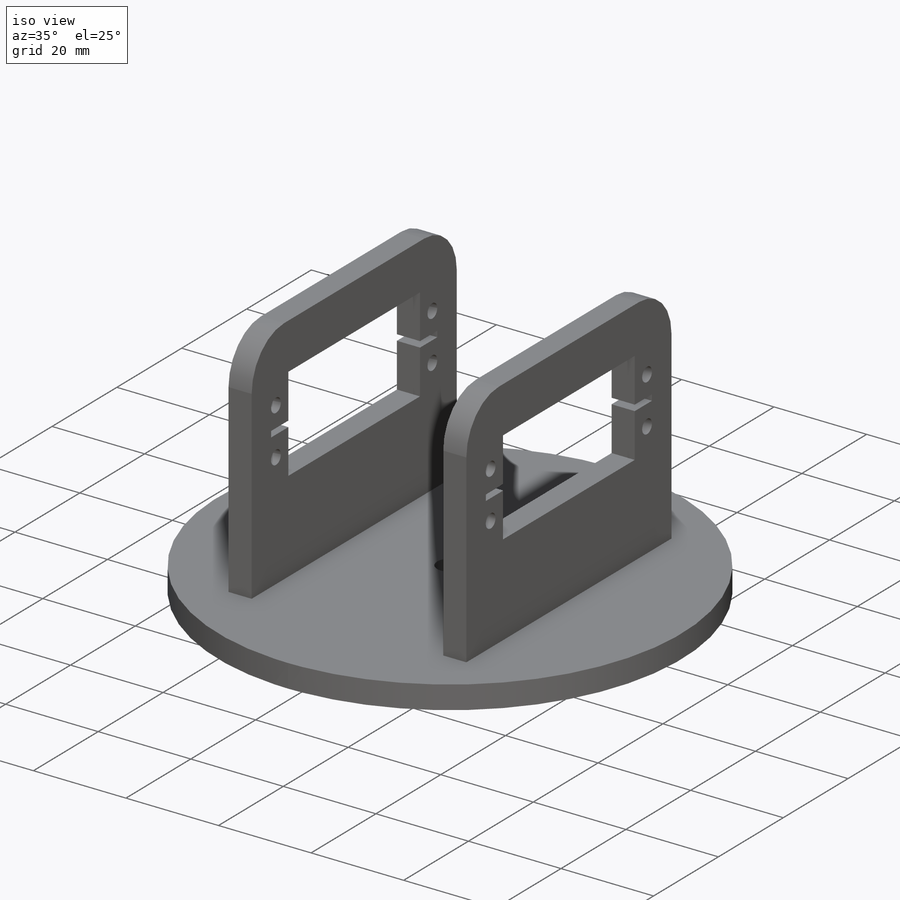
[diagram: iso view]
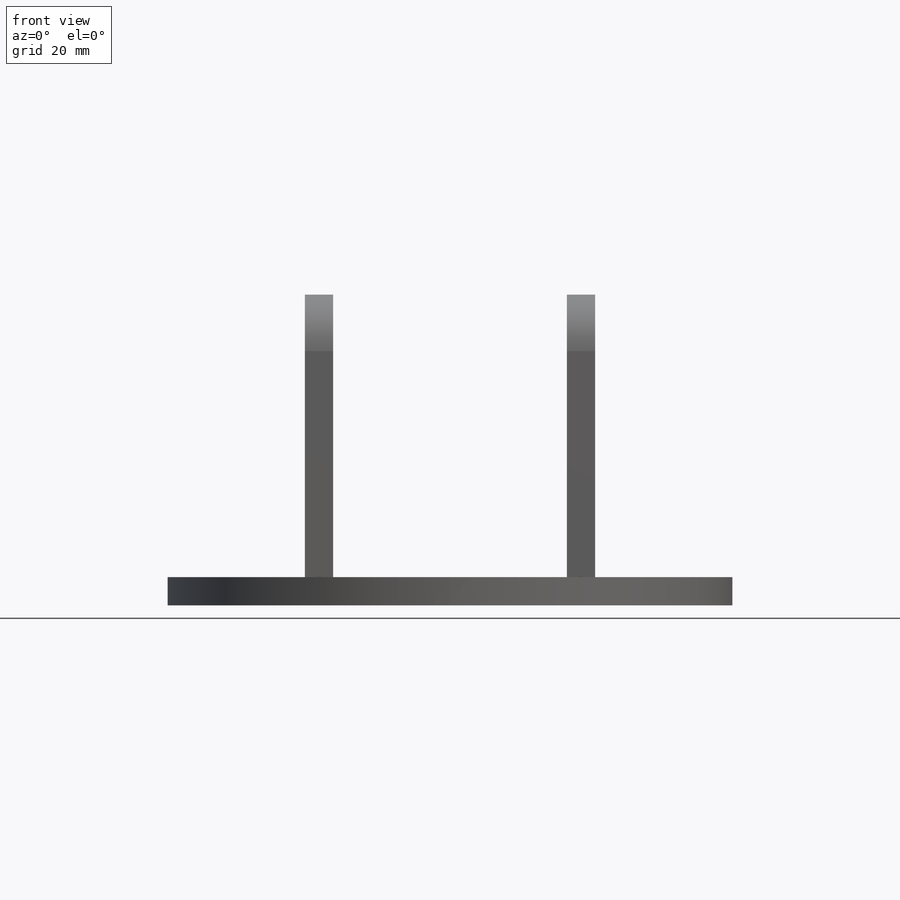
[diagram: front view]
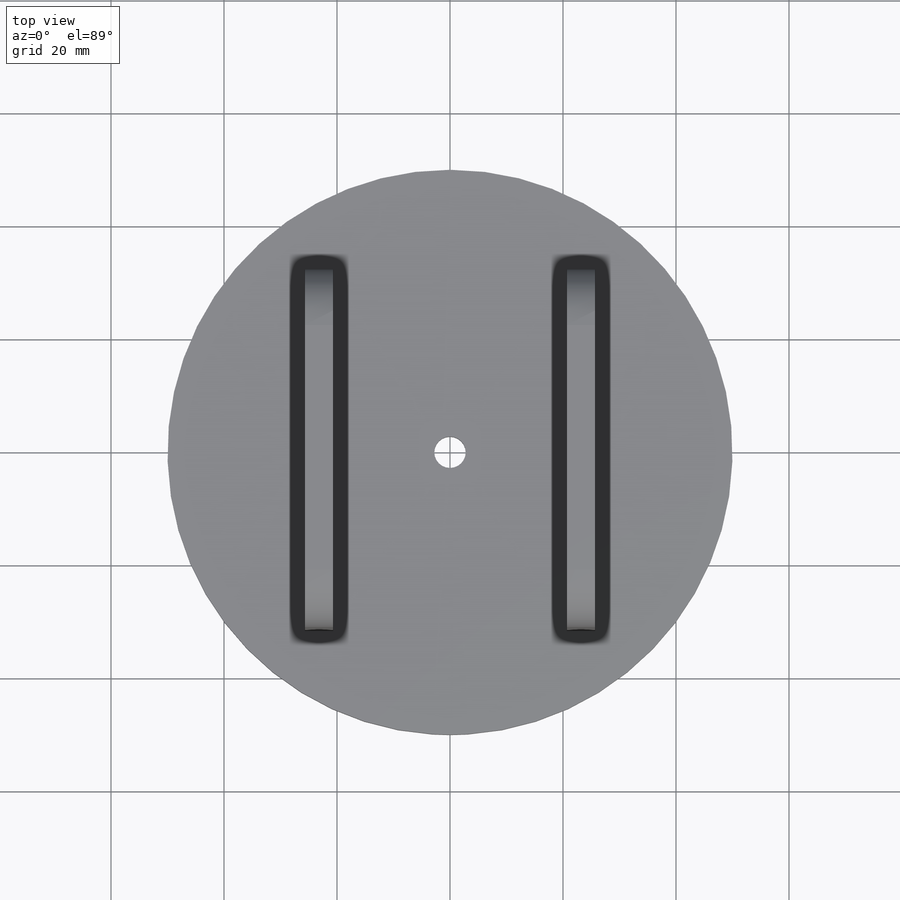
[diagram: top view]
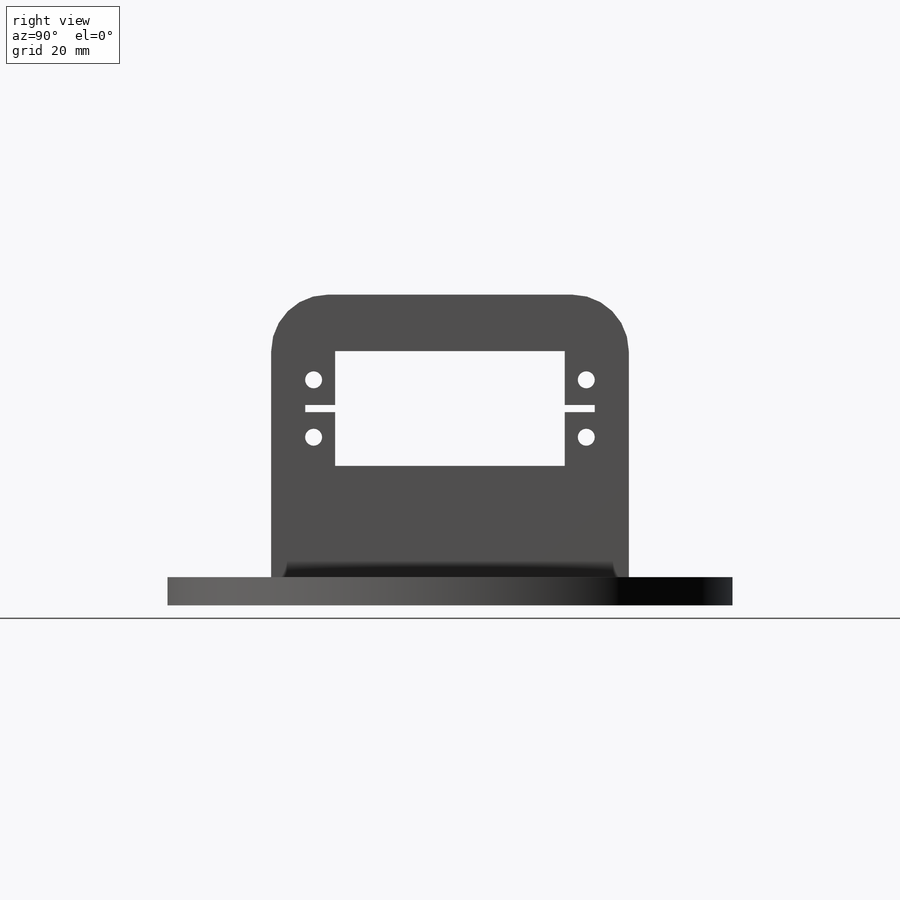
[diagram: right view]
SOLIDWORKS PART (.sldprt)
format: sldprt  version: not decoded by parser v0  size: 245,760 bytes
history: native  units: mm
features: sketch x5, extrude x2, material x1, fillet x1, cut_extrude x1, hole x1, mirror x1 (+12 scaffold rows collapsed)
feature tree (24):
  scaffold x12  (default folders/planes/origin — collapsed)
  material  "Material <not specified>"
  sketch  "Sketch1"  dims[D1=100.0mm D2=5.556mm]
  extrude  "Boss-Extrude1"  Depth=5mm
  sketch  "Sketch2"  dims[D1=63.3mm D2=5.0mm]
  extrude  "Boss-Extrude2"  Depth=50mm
  fillet  "Fillet1"  Radius=10mm
  sketch  "Sketch14"  dims[c1.D1=11.32mm c1.D2=11.32mm c1.D3=20.32mm c1.D4=10.0mm c2.D1=40.64mm c2.D2=1.27mm c2.D3=5.3mm]
  cut_extrude  "Cut-Extrude1"  [1 undecoded]
  hole  "Ø3.0 (3) Diameter Hole1"  Diameter=3mm Depth=29.305746mm
  sketch  "Sketch16"  dims[D1=3.81mm D2=3.81mm D3=5.08mm D4=5.08mm]
  sketch  "Sketch15"  dims[hole-wizard template sketch: 60 standard entries collapsed; hole parameters kept: c18.Thru Hole Depth=~29.305746mm]
  mirror  "Mirror1"
decode coverage: 9 of 11 modeling features carry decoded parameters
note: ~ marks probable driven/reference dimensions
note: 1 parameter value undecoded
note: suppression state not decoded; provenance and decode notes live in map.json
